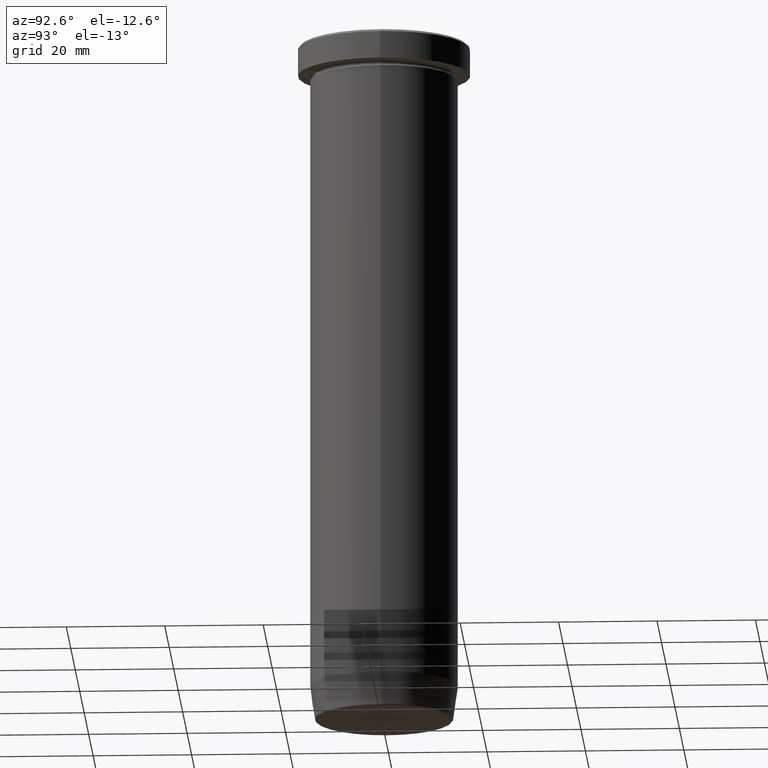
[diagram: clean part render]
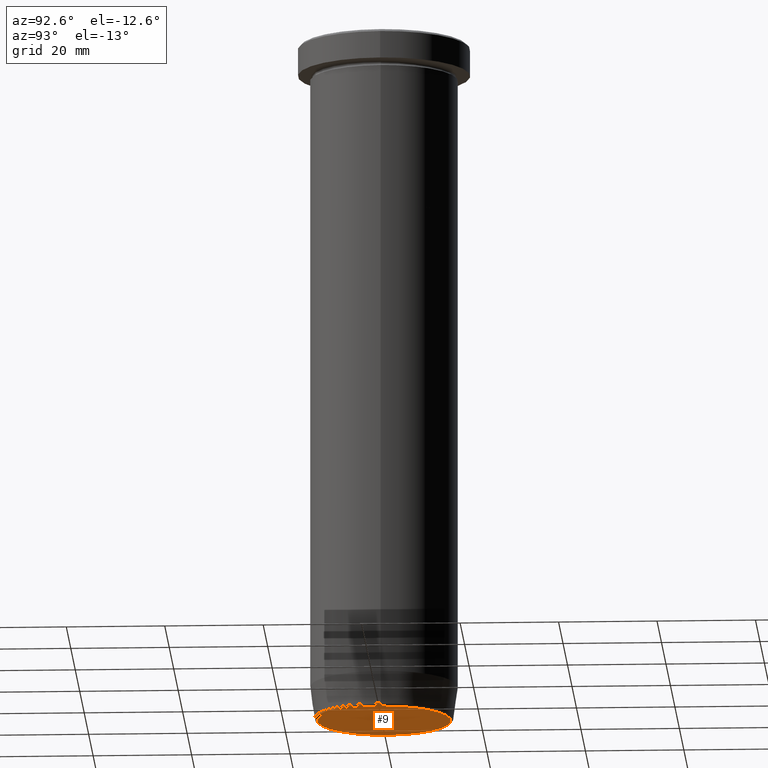
[diagram: same view with one face highlighted and labeled with its STEP entity id]
A machine part, auxiliary view. The second image highlights one B-rep face of the part: STEP entity #9.
In plain terms, the highlighted planar face has unit normal (0, -0, 1).
Its self-contained STEP definition (entity closure, byte-faithful):
#6 = DIRECTION ( 'NONE',  ( 0.000000000000000000, 0.000000000000000000, -1.000000000000000000 ) ) ;
#9 = ADVANCED_FACE ( 'NONE', ( #390 ), #397, .F. ) ;
#26 = AXIS2_PLACEMENT_3D ( 'NONE', #583, #97, #211 ) ;
#38 = ORIENTED_EDGE ( 'NONE', *, *, #236, .T. ) ;
#56 = DIRECTION ( 'NONE',  ( 1.000000000000000000, 0.000000000000000000, 0.000000000000000000 ) ) ;
#76 = EDGE_LOOP ( 'NONE', ( #344, #38 ) ) ;
#97 = DIRECTION ( 'NONE',  ( 0.000000000000000000, -0.000000000000000000, 1.000000000000000000 ) ) ;
#211 = DIRECTION ( 'NONE',  ( 1.000000000000000000, 0.000000000000000000, 0.000000000000000000 ) ) ;
#236 = EDGE_CURVE ( 'NONE', #350, #305, #238, .T. ) ;
#238 = CIRCLE ( 'NONE', #352, 13.58157078817513863 ) ;
#305 = VERTEX_POINT ( 'NONE', #430 ) ;
#307 = EDGE_CURVE ( 'NONE', #305, #350, #362, .T. ) ;
#314 = CARTESIAN_POINT ( 'NONE',  ( 0.000000000000000000, 0.000000000000000000, -139.9999999999999716 ) ) ;
#330 = CARTESIAN_POINT ( 'NONE',  ( 0.000000000000000000, 0.000000000000000000, -139.9999999999999716 ) ) ;
#344 = ORIENTED_EDGE ( 'NONE', *, *, #307, .T. ) ;
#350 = VERTEX_POINT ( 'NONE', #476 ) ;
#352 = AXIS2_PLACEMENT_3D ( 'NONE', #314, #6, #502 ) ;
#362 = CIRCLE ( 'NONE', #579, 13.58157078817513863 ) ;
#390 = FACE_OUTER_BOUND ( 'NONE', #76, .T. ) ;
#397 = PLANE ( 'NONE',  #26 ) ;
#430 = CARTESIAN_POINT ( 'NONE',  ( 13.58157078817513863, 0.000000000000000000, -139.9999999999999716 ) ) ;
#476 = CARTESIAN_POINT ( 'NONE',  ( -13.58157078817513863, 1.693580934830242684E-15, -139.9999999999999716 ) ) ;
#502 = DIRECTION ( 'NONE',  ( 1.000000000000000000, 0.000000000000000000, 0.000000000000000000 ) ) ;
#518 = DIRECTION ( 'NONE',  ( 0.000000000000000000, 0.000000000000000000, -1.000000000000000000 ) ) ;
#579 = AXIS2_PLACEMENT_3D ( 'NONE', #330, #518, #56 ) ;
#583 = CARTESIAN_POINT ( 'NONE',  ( 0.000000000000000000, 7.347880794884116778E-15, -139.9999999999999716 ) ) ;